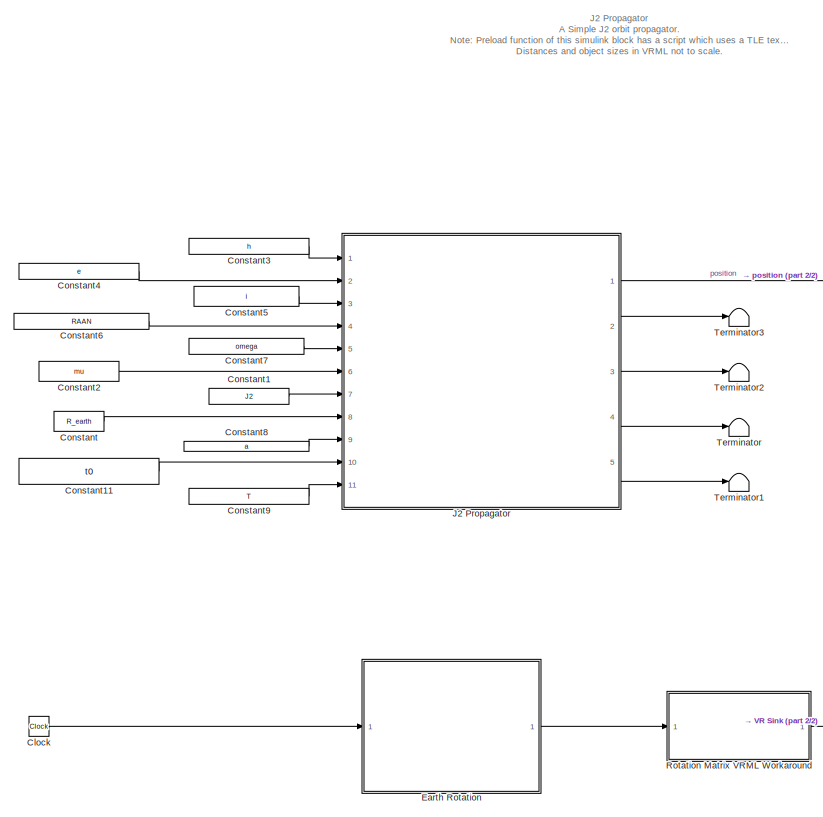
[diagram: root canvas - part 1/2, left side, full height]
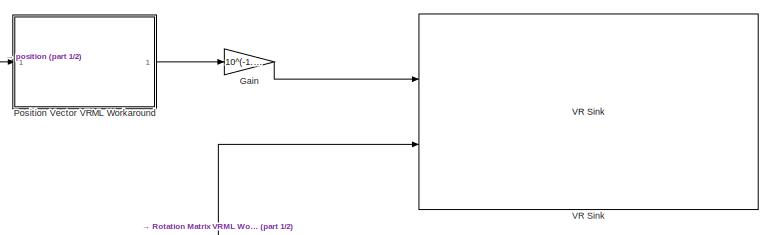
[diagram: root canvas - part 2/2, middle right region]
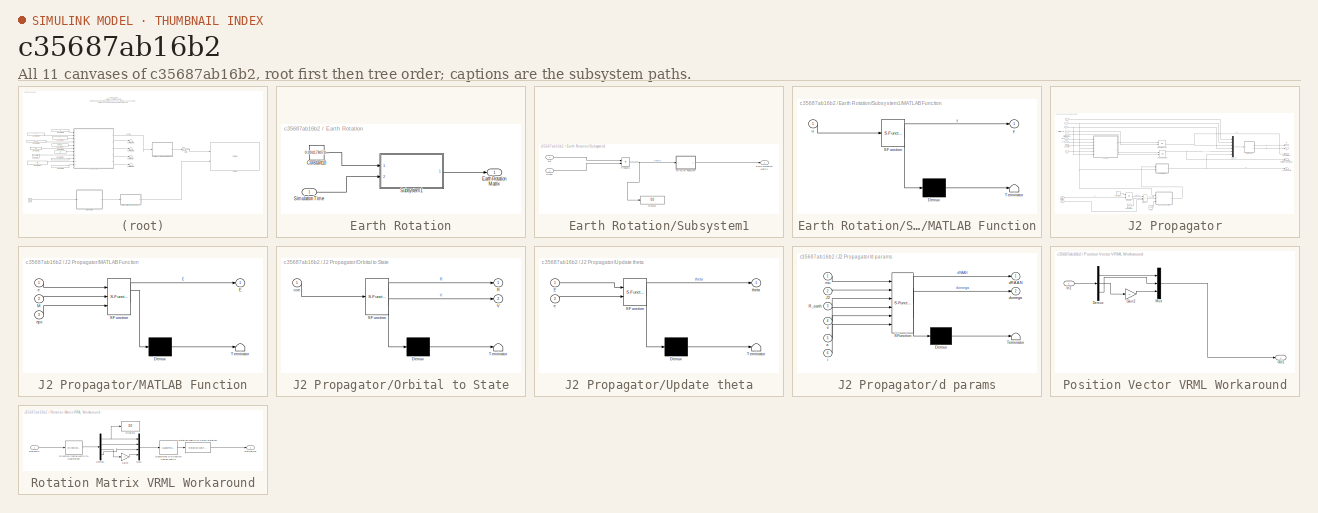
[diagram: thumbnail index - all 11 canvases of the model, root first then tree order]
MODEL slx_c35687ab16b2
KIND model
CONFIG AbsTol = auto
CONFIG EnableMultiTasking = on
CONFIG FixedStep = 10
CONFIG MaxStep = auto
CONFIG MinStep = auto
CONFIG PreLoadFcn = InitialiseJ2
CONFIG RelTol = 1e-3
CONFIG SampleTimeConstraint = Unconstrained
CONFIG Solver = FixedStepAuto
CONFIG SolverName = FixedStepAuto
CONFIG StartTime = 0.0
CONFIG StopTime = 24*3600
BLOCK [Clock] Clock
BLOCK [Constant] Constant
  Value = R_earth
BLOCK [Constant] Constant1
  Value = J2
BLOCK [Constant] Constant11
  Value = t0
BLOCK [Constant] Constant2
  Value = mu
BLOCK [Constant] Constant3
  Value = h
BLOCK [Constant] Constant4
  Value = e
BLOCK [Constant] Constant5
  Value = i
BLOCK [Constant] Constant6
  Value = RAAN
BLOCK [Constant] Constant7
  Value = omega
BLOCK [Constant] Constant8
  Value = a
BLOCK [Constant] Constant9
  Value = T
BLOCK [SubSystem] Earth Rotation
  Ports = [1, 1]
  RequestExecContextInheritance = off
  Variant = off
BLOCK [Constant] Earth Rotation/Constant10
  Value = 0.004178074378280
BLOCK [Outport] Earth Rotation/Earth Rotation Matrix
  IconDisplay = Port number
BLOCK [Inport] Earth Rotation/Simulation Time
  IconDisplay = Port number
BLOCK [SubSystem] Earth Rotation/Subsystem1
  Ports = [2, 1]
  RequestExecContextInheritance = off
  Variant = off
BLOCK [Inport] Earth Rotation/Subsystem1/Clock
  IconDisplay = Port number
  Port = 2
BLOCK [Display] Earth Rotation/Subsystem1/Display
  Decimation = 1
  Ports = [1]
BLOCK [Outport] Earth Rotation/Subsystem1/Earth Rotation Matrix
  IconDisplay = Port number
BLOCK [SubSystem] Earth Rotation/Subsystem1/MATLAB Function
  ErrorFcn = Stateflow.Translate.translate
  PermitHierarchicalResolution = ExplicitOnly
  Ports = [1, 1]
  RequestExecContextInheritance = off
  SFBlockType = MATLAB Function
  TreatAsAtomicUnit = on
  Variant = off
BLOCK [Demux] Earth Rotation/Subsystem1/MATLAB Function/ Demux 
  Outputs = 1
  Ports = [1, 1]
BLOCK [S-Function] Earth Rotation/Subsystem1/MATLAB Function/ SFunction 
  EnableBusSupport = on
  FunctionName = sf_sfun
  PortCounts = [1 2]
  Ports = [1, 2]
  SFcnIsStateOwnerBlock = off
  SFunctionDeploymentMode = off
  Tag = Stateflow S-Function J2Propagator 1
BLOCK [Terminator] Earth Rotation/Subsystem1/MATLAB Function/ Terminator 
BLOCK [Inport] Earth Rotation/Subsystem1/MATLAB Function/u
  IconDisplay = Port number
BLOCK [Outport] Earth Rotation/Subsystem1/MATLAB Function/y
  IconDisplay = Port number
BLOCK [Product] Earth Rotation/Subsystem1/Product1
  InputSameDT = off
  OutDataTypeStr = Inherit: Inherit via internal rule
  Ports = [2, 1]
  RndMeth = Floor
  SaturateOnIntegerOverflow = off
BLOCK [Inport] Earth Rotation/Subsystem1/we
  IconDisplay = Port number
BLOCK [Gain] Gain
  Gain = 10^(-1.65)
  OutDataTypeStr = Inherit: Inherit via internal rule
  ParamDataTypeStr = Inherit: Inherit via internal rule
  SaturateOnIntegerOverflow = off
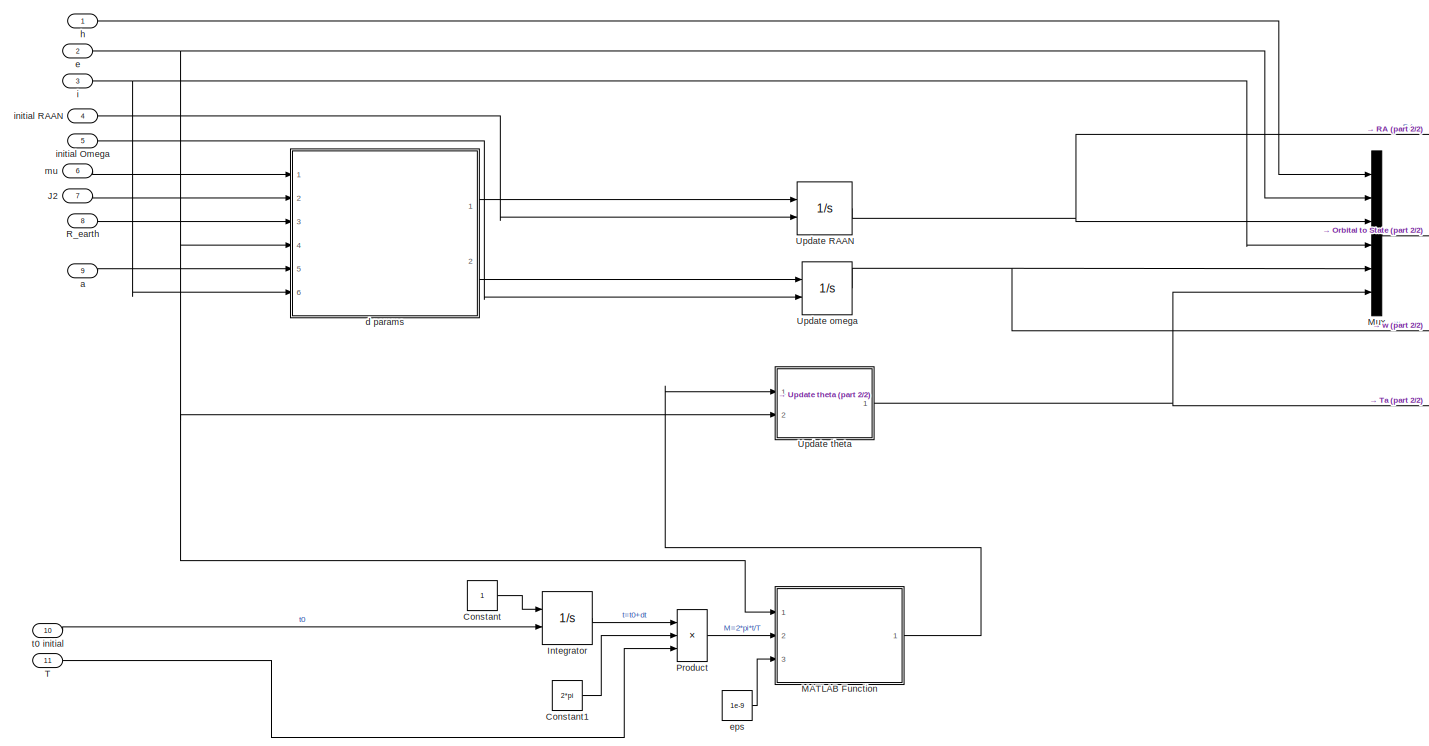
[diagram: J2 Propagator - part 1/2, most of the canvas]
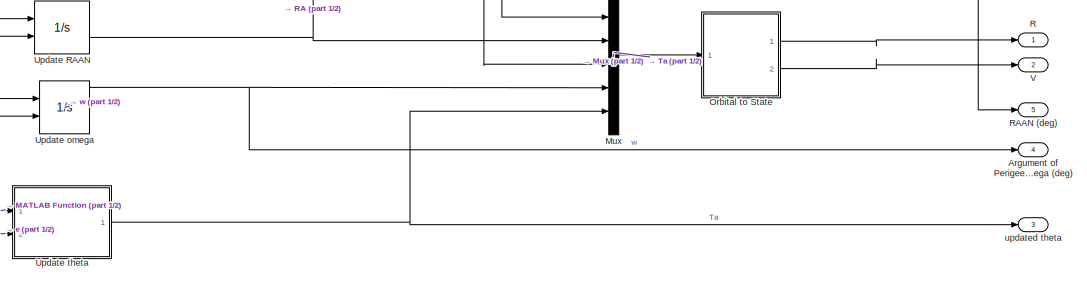
[diagram: J2 Propagator - part 2/2, middle right region]
BLOCK [SubSystem] J2 Propagator
  Ports = [11, 5]
  RequestExecContextInheritance = off
  Variant = off
BLOCK [Outport] J2 Propagator/Argument of Perigee Omega (deg)
  IconDisplay = Port number
  Port = 4
BLOCK [Constant] J2 Propagator/Constant
BLOCK [Constant] J2 Propagator/Constant1
  Value = 2*pi
BLOCK [Integrator] J2 Propagator/Integrator
  InitialConditionSource = external
  Ports = [2, 1]
BLOCK [Inport] J2 Propagator/J2
  IconDisplay = Port number
  Port = 7
BLOCK [SubSystem] J2 Propagator/MATLAB Function
  ErrorFcn = Stateflow.Translate.translate
  PermitHierarchicalResolution = ExplicitOnly
  Ports = [3, 1]
  RequestExecContextInheritance = off
  SFBlockType = MATLAB Function
  TreatAsAtomicUnit = on
  Variant = off
BLOCK [Demux] J2 Propagator/MATLAB Function/ Demux 
  Outputs = 1
  Ports = [1, 1]
BLOCK [S-Function] J2 Propagator/MATLAB Function/ SFunction 
  EnableBusSupport = on
  FunctionName = sf_sfun
  PortCounts = [3 2]
  Ports = [3, 2]
  SFcnIsStateOwnerBlock = off
  SFunctionDeploymentMode = off
  Tag = Stateflow S-Function J2Propagator 4
BLOCK [Terminator] J2 Propagator/MATLAB Function/ Terminator 
BLOCK [Outport] J2 Propagator/MATLAB Function/E
  IconDisplay = Port number
BLOCK [Inport] J2 Propagator/MATLAB Function/M
  IconDisplay = Port number
  Port = 2
BLOCK [Inport] J2 Propagator/MATLAB Function/e
  IconDisplay = Port number
BLOCK [Inport] J2 Propagator/MATLAB Function/eps
  IconDisplay = Port number
  Port = 3
BLOCK [Mux] J2 Propagator/Mux
  DisplayOption = bar
  Inputs = 6
  Ports = [6, 1]
BLOCK [SubSystem] J2 Propagator/Orbital to State
  ErrorFcn = Stateflow.Translate.translate
  PermitHierarchicalResolution = ExplicitOnly
  Ports = [1, 2]
  RequestExecContextInheritance = off
  SFBlockType = MATLAB Function
  TreatAsAtomicUnit = on
  Variant = off
BLOCK [Demux] J2 Propagator/Orbital to State/ Demux 
  Outputs = 1
  Ports = [1, 1]
BLOCK [S-Function] J2 Propagator/Orbital to State/ SFunction 
  EnableBusSupport = on
  FunctionName = sf_sfun
  PortCounts = [1 3]
  Ports = [1, 3]
  SFcnIsStateOwnerBlock = off
  SFunctionDeploymentMode = off
  Tag = Stateflow S-Function J2Propagator 6
BLOCK [Terminator] J2 Propagator/Orbital to State/ Terminator 
BLOCK [Outport] J2 Propagator/Orbital to State/R
  IconDisplay = Port number
BLOCK [Outport] J2 Propagator/Orbital to State/V
  IconDisplay = Port number
  Port = 2
BLOCK [Inport] J2 Propagator/Orbital to State/coe
  IconDisplay = Port number
BLOCK [Product] J2 Propagator/Product
  InputSameDT = off
  Inputs = **/
  OutDataTypeStr = Inherit: Inherit via internal rule
  Ports = [3, 1]
  RndMeth = Floor
  SaturateOnIntegerOverflow = off
BLOCK [Outport] J2 Propagator/R
  IconDisplay = Port number
BLOCK [Outport] J2 Propagator/RAAN (deg)
  IconDisplay = Port number
  Port = 5
BLOCK [Inport] J2 Propagator/R_earth
  IconDisplay = Port number
  Port = 8
BLOCK [Inport] J2 Propagator/T
  IconDisplay = Port number
  Port = 11
BLOCK [Integrator] J2 Propagator/Update RAAN
  InitialConditionSource = external
  Ports = [2, 1]
BLOCK [Integrator] J2 Propagator/Update omega
  InitialConditionSource = external
  Ports = [2, 1]
BLOCK [SubSystem] J2 Propagator/Update theta
  ErrorFcn = Stateflow.Translate.translate
  PermitHierarchicalResolution = ExplicitOnly
  Ports = [2, 1]
  RequestExecContextInheritance = off
  SFBlockType = MATLAB Function
  TreatAsAtomicUnit = on
  Variant = off
BLOCK [Demux] J2 Propagator/Update theta/ Demux 
  Outputs = 1
  Ports = [1, 1]
BLOCK [S-Function] J2 Propagator/Update theta/ SFunction 
  EnableBusSupport = on
  FunctionName = sf_sfun
  PortCounts = [2 2]
  Ports = [2, 2]
  SFcnIsStateOwnerBlock = off
  SFunctionDeploymentMode = off
  Tag = Stateflow S-Function J2Propagator 5
BLOCK [Terminator] J2 Propagator/Update theta/ Terminator 
BLOCK [Inport] J2 Propagator/Update theta/E
  IconDisplay = Port number
BLOCK [Inport] J2 Propagator/Update theta/e
  IconDisplay = Port number
  Port = 2
BLOCK [Outport] J2 Propagator/Update theta/theta
  IconDisplay = Port number
BLOCK [Outport] J2 Propagator/V
  IconDisplay = Port number
  Port = 2
BLOCK [Inport] J2 Propagator/a
  IconDisplay = Port number
  Port = 9
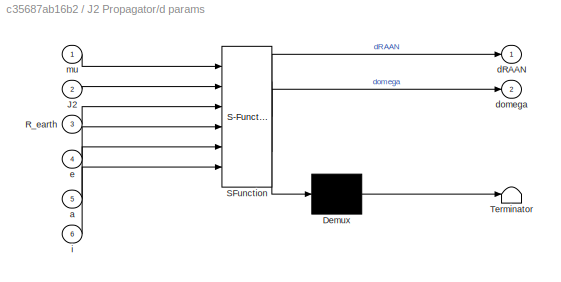
BLOCK [SubSystem] J2 Propagator/d params
  ErrorFcn = Stateflow.Translate.translate
  PermitHierarchicalResolution = ExplicitOnly
  Ports = [6, 2]
  RequestExecContextInheritance = off
  SFBlockType = MATLAB Function
  TreatAsAtomicUnit = on
  Variant = off
BLOCK [Demux] J2 Propagator/d params/ Demux 
  Outputs = 1
  Ports = [1, 1]
BLOCK [S-Function] J2 Propagator/d params/ SFunction 
  EnableBusSupport = on
  FunctionName = sf_sfun
  PortCounts = [6 3]
  Ports = [6, 3]
  SFcnIsStateOwnerBlock = off
  SFunctionDeploymentMode = off
  Tag = Stateflow S-Function J2Propagator 2
BLOCK [Terminator] J2 Propagator/d params/ Terminator 
BLOCK [Inport] J2 Propagator/d params/J2
  IconDisplay = Port number
  Port = 2
BLOCK [Inport] J2 Propagator/d params/R_earth
  IconDisplay = Port number
  Port = 3
BLOCK [Inport] J2 Propagator/d params/a
  IconDisplay = Port number
  Port = 5
BLOCK [Outport] J2 Propagator/d params/dRAAN
  IconDisplay = Port number
BLOCK [Outport] J2 Propagator/d params/domega
  IconDisplay = Port number
  Port = 2
BLOCK [Inport] J2 Propagator/d params/e
  IconDisplay = Port number
  Port = 4
BLOCK [Inport] J2 Propagator/d params/i
  IconDisplay = Port number
  Port = 6
BLOCK [Inport] J2 Propagator/d params/mu
  IconDisplay = Port number
BLOCK [Inport] J2 Propagator/e
  IconDisplay = Port number
  Port = 2
BLOCK [Constant] J2 Propagator/eps
  Value = 1e-9
BLOCK [Inport] J2 Propagator/h
  IconDisplay = Port number
BLOCK [Inport] J2 Propagator/i
  IconDisplay = Port number
  Port = 3
BLOCK [Inport] J2 Propagator/initial Omega
  IconDisplay = Port number
  Port = 5
BLOCK [Inport] J2 Propagator/initial RAAN
  IconDisplay = Port number
  Port = 4
BLOCK [Inport] J2 Propagator/mu
  IconDisplay = Port number
  Port = 6
BLOCK [Inport] J2 Propagator/t0 initial
  IconDisplay = Port number
  Port = 10
BLOCK [Outport] J2 Propagator/updated theta
  IconDisplay = Port number
  Port = 3
BLOCK [SubSystem] Position Vector VRML Workaround
  Ports = [1, 1]
  RequestExecContextInheritance = off
  Variant = off
BLOCK [Demux] Position Vector VRML Workaround/Demux
  DisplayOption = bar
  Outputs = 3
  Ports = [1, 3]
BLOCK [Gain] Position Vector VRML Workaround/Gain2
  Gain = -1
  OutDataTypeStr = Inherit: Inherit via internal rule
  ParamDataTypeStr = Inherit: Inherit via internal rule
  SaturateOnIntegerOverflow = off
BLOCK [Inport] Position Vector VRML Workaround/In1
  IconDisplay = Port number
BLOCK [Mux] Position Vector VRML Workaround/Mux
  DisplayOption = bar
  Inputs = 3
  Ports = [3, 1]
BLOCK [Outport] Position Vector VRML Workaround/Out1
  IconDisplay = Port number
BLOCK [SubSystem] Rotation Matrix VRML Workaround
  Ports = [1, 1]
  RequestExecContextInheritance = off
  Variant = off
BLOCK [Demux] Rotation Matrix VRML Workaround/Demux1
  DisplayOption = bar
  Ports = [1, 4]
BLOCK [Reference] Rotation Matrix VRML Workaround/Direction Cosine Matrix to Quaternions  REF=sharedtransform/Direction Cosine Matrix 
to Quaternions
  Ports = [1, 1]
  SourceBlock = sharedtransform/Direction Cosine Matrix \nto Quaternions
  SourceType = DCM2Quaternion
BLOCK [Display] Rotation Matrix VRML Workaround/Display6
  Decimation = 1
  Ports = [1]
BLOCK [Gain] Rotation Matrix VRML Workaround/Gain3
  Gain = -1
  OutDataTypeStr = Inherit: Inherit via internal rule
  ParamDataTypeStr = Inherit: Inherit via internal rule
  SaturateOnIntegerOverflow = off
BLOCK [Mux] Rotation Matrix VRML Workaround/Mux1
  DisplayOption = bar
  Ports = [4, 1]
BLOCK [Reference] Rotation Matrix VRML Workaround/Quaternions to Direction Cosine Matrix  REF=sharedtransform/Quaternions to 
Direction Cosine Matrix
  Ports = [1, 1]
  SourceBlock = sharedtransform/Quaternions to \nDirection Cosine Matrix
  SourceType = Quaternion2DCM
BLOCK [Inport] Rotation Matrix VRML Workaround/RotMatIn
  IconDisplay = Port number
BLOCK [Outport] Rotation Matrix VRML Workaround/RotMatOut
  IconDisplay = Port number
BLOCK [Reference] Rotation Matrix VRML Workaround/Rotation Matrix to VRML Rotation  REF=vrlib/Utilities/Rotation Matrix
to VRML Rotation
  Ports = [1, 1]
  SourceBlock = vrlib/Utilities/Rotation Matrix\nto VRML Rotation
  SourceProductBaseCode = VR
  SourceProductName = Simulink 3D Animation
  SourceType = Rotation Matrix to VRML Rotation
BLOCK [Terminator] Terminator
BLOCK [Terminator] Terminator1
BLOCK [Terminator] Terminator2
BLOCK [Terminator] Terminator3
BLOCK [Reference] VR Sink  REF=vrlib/VR Sink
  InstantiateOnLoad = on
  Ports = [2]
  SourceBlock = vrlib/VR Sink
  SourceProductBaseCode = VR
  SourceProductName = Simulink 3D Animation
  SourceType = Virtual Reality Sink
ANNOTATION (root): J2 Propagator A Simple J2 orbit propagator. Note: Preload function of this simulink block has a script which uses a TLE text file(Generated using STK) to initialises the orbital elements and other revelant variables. Distances and object sizes in VRML not to scale.
LINE Clock:1 -> Earth Rotation:1
LINE Constant11:1 -> J2 Propagator:10
LINE Constant1:1 -> J2 Propagator:7
LINE Constant2:1 -> J2 Propagator:6
LINE Constant3:1 -> J2 Propagator:1
LINE Constant4:1 -> J2 Propagator:2
LINE Constant5:1 -> J2 Propagator:3
LINE Constant6:1 -> J2 Propagator:4
LINE Constant7:1 -> J2 Propagator:5
LINE Constant8:1 -> J2 Propagator:9
LINE Constant9:1 -> J2 Propagator:11
LINE Constant:1 -> J2 Propagator:8
LINE Earth Rotation/Constant10:1 -> Earth Rotation/Subsystem1:1
LINE Earth Rotation/Simulation Time:1 -> Earth Rotation/Subsystem1:2
LINE Earth Rotation/Subsystem1/Clock:1 -> Earth Rotation/Subsystem1/Product1:2
LINE Earth Rotation/Subsystem1/MATLAB Function:1 -> Earth Rotation/Subsystem1/Earth Rotation Matrix:1
NET Earth Rotation/Subsystem1/Product1:1 -> Earth Rotation/Subsystem1/Display:1, Earth Rotation/Subsystem1/MATLAB Function:1
LINE Earth Rotation/Subsystem1/we:1 -> Earth Rotation/Subsystem1/Product1:1
LINE Earth Rotation/Subsystem1:1 -> Earth Rotation/Earth Rotation Matrix:1
LINE Earth Rotation:1 -> Rotation Matrix VRML Workaround:1
LINE Gain:1 -> VR Sink:1
LINE J2 Propagator/Constant1:1 -> J2 Propagator/Product:2
LINE J2 Propagator/Constant:1 -> J2 Propagator/Integrator:1
LINE J2 Propagator/Integrator:1 -> J2 Propagator/Product:1
LINE J2 Propagator/J2:1 -> J2 Propagator/d params:2
LINE J2 Propagator/MATLAB Function:1 -> J2 Propagator/Update theta:1
LINE J2 Propagator/Mux:1 -> J2 Propagator/Orbital to State:1
LINE J2 Propagator/Orbital to State:1 -> J2 Propagator/R:1
LINE J2 Propagator/Orbital to State:2 -> J2 Propagator/V:1
LINE J2 Propagator/Product:1 -> J2 Propagator/MATLAB Function:2
LINE J2 Propagator/R_earth:1 -> J2 Propagator/d params:3
LINE J2 Propagator/T:1 -> J2 Propagator/Product:3
NET J2 Propagator/Update RAAN:1 -> J2 Propagator/Mux:3, J2 Propagator/RAAN (deg):1
NET J2 Propagator/Update omega:1 -> J2 Propagator/Argument of Perigee Omega (deg):1, J2 Propagator/Mux:5
NET J2 Propagator/Update theta:1 -> J2 Propagator/Mux:6, J2 Propagator/updated theta:1
LINE J2 Propagator/a:1 -> J2 Propagator/d params:5
LINE J2 Propagator/d params:1 -> J2 Propagator/Update RAAN:1
LINE J2 Propagator/d params:2 -> J2 Propagator/Update omega:1
NET J2 Propagator/e:1 -> J2 Propagator/MATLAB Function:1, J2 Propagator/Mux:2, J2 Propagator/Update theta:2, J2 Propagator/d params:4
LINE J2 Propagator/eps:1 -> J2 Propagator/MATLAB Function:3
LINE J2 Propagator/h:1 -> J2 Propagator/Mux:1
NET J2 Propagator/i:1 -> J2 Propagator/Mux:4, J2 Propagator/d params:6
LINE J2 Propagator/initial Omega:1 -> J2 Propagator/Update omega:2
LINE J2 Propagator/initial RAAN:1 -> J2 Propagator/Update RAAN:2
LINE J2 Propagator/mu:1 -> J2 Propagator/d params:1
LINE J2 Propagator/t0 initial:1 -> J2 Propagator/Integrator:2
LINE J2 Propagator:1 -> Position Vector VRML Workaround:1
LINE J2 Propagator:2 -> Terminator3:1
LINE J2 Propagator:3 -> Terminator2:1
LINE J2 Propagator:4 -> Terminator:1
LINE J2 Propagator:5 -> Terminator1:1
LINE Position Vector VRML Workaround/Demux:1 -> Position Vector VRML Workaround/Mux:1
LINE Position Vector VRML Workaround/Demux:2 -> Position Vector VRML Workaround/Gain2:1
LINE Position Vector VRML Workaround/Demux:3 -> Position Vector VRML Workaround/Mux:2
LINE Position Vector VRML Workaround/Gain2:1 -> Position Vector VRML Workaround/Mux:3
LINE Position Vector VRML Workaround/In1:1 -> Position Vector VRML Workaround/Demux:1
LINE Position Vector VRML Workaround/Mux:1 -> Position Vector VRML Workaround/Out1:1
LINE Position Vector VRML Workaround:1 -> Gain:1
NET Rotation Matrix VRML Workaround/Demux1:1 -> Rotation Matrix VRML Workaround/Display6:1, Rotation Matrix VRML Workaround/Mux1:1
LINE Rotation Matrix VRML Workaround/Demux1:2 -> Rotation Matrix VRML Workaround/Mux1:2
LINE Rotation Matrix VRML Workaround/Demux1:3 -> Rotation Matrix VRML Workaround/Gain3:1
LINE Rotation Matrix VRML Workaround/Demux1:4 -> Rotation Matrix VRML Workaround/Mux1:3
LINE Rotation Matrix VRML Workaround/Direction Cosine Matrix to Quaternions:1 -> Rotation Matrix VRML Workaround/Demux1:1
LINE Rotation Matrix VRML Workaround/Gain3:1 -> Rotation Matrix VRML Workaround/Mux1:4
LINE Rotation Matrix VRML Workaround/Mux1:1 -> Rotation Matrix VRML Workaround/Quaternions to Direction Cosine Matrix:1
LINE Rotation Matrix VRML Workaround/Quaternions to Direction Cosine Matrix:1 -> Rotation Matrix VRML Workaround/Rotation Matrix to VRML Rotation:1
LINE Rotation Matrix VRML Workaround/RotMatIn:1 -> Rotation Matrix VRML Workaround/Direction Cosine Matrix to Quaternions:1
LINE Rotation Matrix VRML Workaround/Rotation Matrix to VRML Rotation:1 -> Rotation Matrix VRML Workaround/RotMatOut:1
LINE Rotation Matrix VRML Workaround:1 -> VR Sink:2
note: NET lines group one-source signal fan-out (src -> all destinations, sorted); 1:1 wires keep LINE
CHART Earth Rotation/Subsystem1/MATLAB Function states=1 transitions=1
  STATE_LABEL 'eML_blk_kernel()'
  STATE_LABEL 'SCRIPT:\nfunction y = fcn(u)\n%#codegen\n\ny =rotz(u);'
CHART J2 Propagator/d params states=1 transitions=1
  STATE_LABEL 'eML_blk_kernel()'
  STATE_LABEL 'SCRIPT:\nfunction [dRAAN, domega]=dparams(mu,J2, R_earth,e,a,i)\n\ndRAAN = -(1.5*mu^0.5*J2*R_earth^2/((1-e^2)*a^3.5))*cosd(i)*180/pi;\ndomega = dRAAN*(2.5*sind(i)^2 - 2)/cosd(i);\nend'
CHART J2 Propagator/MATLAB Function states=1 transitions=1
  STATE_LABEL 'eML_blk_kernel()'
  STATE_LABEL 'SCRIPT:\nfunction E = keplerEq(e,M,eps)\nEn  = M;\nEns = En - (En-e*sin(En)- M)/(1 - e*cos(En));\nwhile ( abs(Ens-En) > eps )\n    En = Ens;\n    Ens = En - (En - e*sin(En) - M)/(1 - e*cos(En));\nend;\nE = Ens;\nend'
CHART J2 Propagator/Update theta states=1 transitions=1
  STATE_LABEL 'eML_blk_kernel()'
  STATE_LABEL 'SCRIPT:\nfunction theta = updateTheta(E,e)\ntheta=2*atan(tan(E/2)*((1+e)/(1-e))^0.5)*180/pi;\n\nend'
CHART J2 Propagator/Orbital to State states=1 transitions=1
  STATE_LABEL 'eML_blk_kernel()'
  STATE_LABEL 'SCRIPT:\nfunction [R, V] = Orbital2State(coe)\n\n% ˜˜˜˜˜˜˜˜˜˜˜˜˜˜˜˜˜˜˜˜˜˜˜˜˜˜˜˜˜˜˜˜˜˜\n% This function computes the state vector (r,v) from the\n% classical orbital elements (coe).\n%\n% mu - gravitational parameter (kmˆ3; sˆ2)\n% coe - orbital elements [h e RA incl w TA]\n% where\n% h = angular momentum (kmˆ2/s)\n% e = eccentricity\n% RA = right ascension of the ascending node (rad)\n% incl = inclination of t...<+1456ch>'
